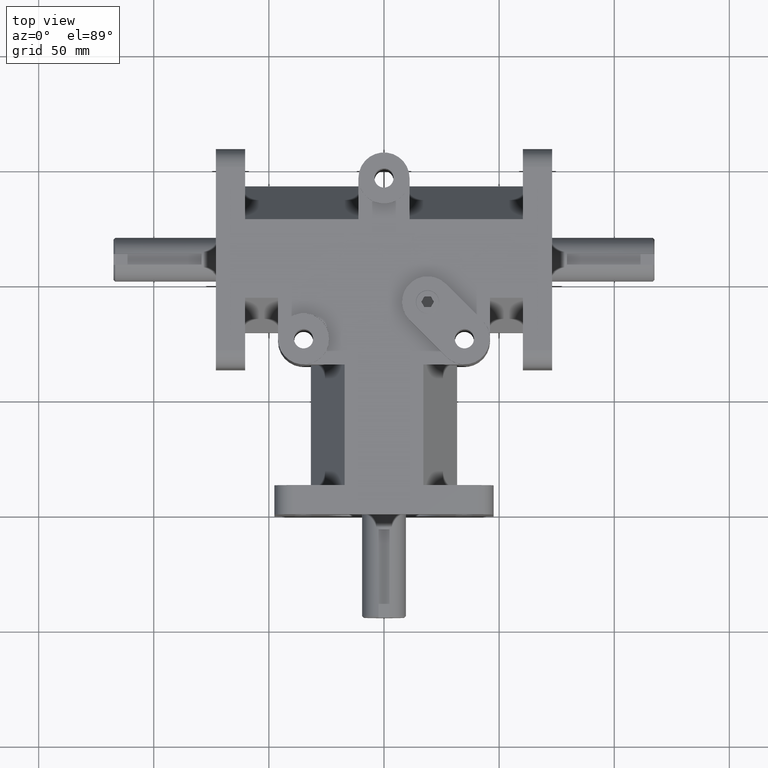
[diagram: clean part render]
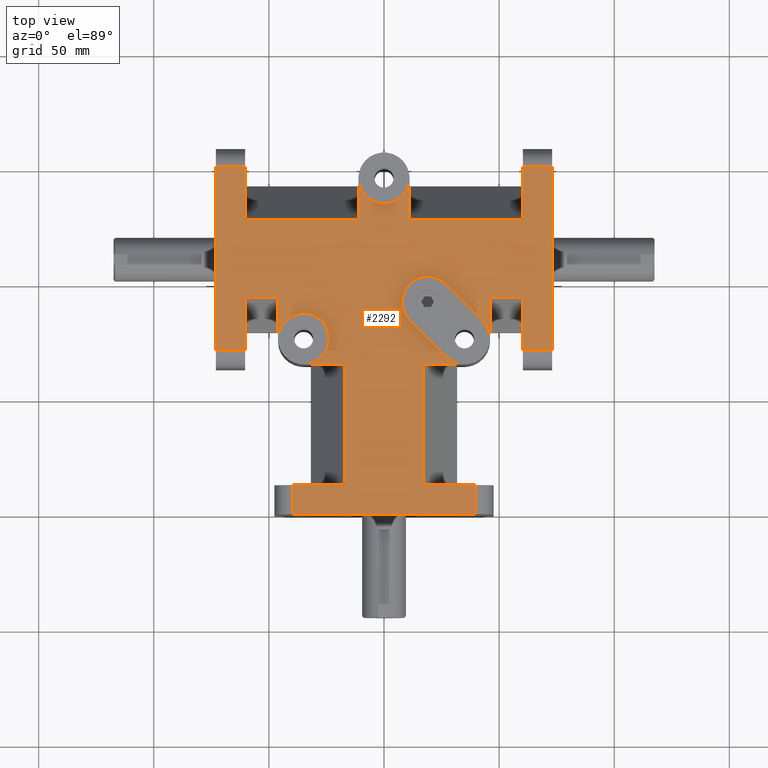
[diagram: same view with one face highlighted and labeled with its STEP entity id]
A machine part, top view. The second image highlights one B-rep face of the part: STEP entity #2292.
In plain terms, the highlighted planar face has unit normal (0, 0, 1).
Its self-contained STEP definition (entity closure, byte-faithful):
#31=LINE('',#3398,#253);
#32=LINE('',#3404,#254);
#37=LINE('',#3425,#259);
#42=LINE('',#3449,#264);
#47=LINE('',#3470,#269);
#50=LINE('',#3485,#272);
#56=LINE('',#3498,#278);
#58=LINE('',#3506,#280);
#64=LINE('',#3520,#286);
#72=LINE('',#3541,#294);
#91=LINE('',#3587,#313);
#92=LINE('',#3589,#314);
#93=LINE('',#3593,#315);
#94=LINE('',#3595,#316);
#95=LINE('',#3596,#317);
#96=LINE('',#3597,#318);
#97=LINE('',#3599,#319);
#98=LINE('',#3601,#320);
#99=LINE('',#3605,#321);
#100=LINE('',#3607,#322);
#101=LINE('',#3608,#323);
#102=LINE('',#3610,#324);
#103=LINE('',#3612,#325);
#104=LINE('',#3614,#326);
#105=LINE('',#3618,#327);
#106=LINE('',#3622,#328);
#107=LINE('',#3626,#329);
#108=LINE('',#3627,#330);
#109=LINE('',#3628,#331);
#253=VECTOR('',#2709,1.);
#254=VECTOR('',#2714,1.);
#259=VECTOR('',#2733,1.);
#264=VECTOR('',#2754,1.);
#269=VECTOR('',#2773,1.);
#272=VECTOR('',#2786,1.);
#278=VECTOR('',#2796,1.);
#280=VECTOR('',#2804,1.);
#286=VECTOR('',#2816,1.);
#294=VECTOR('',#2834,1.);
#313=VECTOR('',#2869,1.);
#314=VECTOR('',#2870,1.);
#315=VECTOR('',#2873,1.);
#316=VECTOR('',#2874,1.);
#317=VECTOR('',#2875,1.);
#318=VECTOR('',#2876,1.);
#319=VECTOR('',#2877,1.);
#320=VECTOR('',#2878,1.);
#321=VECTOR('',#2881,1.);
#322=VECTOR('',#2882,1.);
#323=VECTOR('',#2883,1.);
#324=VECTOR('',#2884,1.);
#325=VECTOR('',#2885,1.);
#326=VECTOR('',#2886,1.);
#327=VECTOR('',#2889,1.);
#328=VECTOR('',#2892,1.);
#329=VECTOR('',#2895,1.);
#330=VECTOR('',#2896,1.);
#331=VECTOR('',#2897,1.);
#580=FACE_OUTER_BOUND('',#729,.T.);
#729=EDGE_LOOP('',(#1666,#1667,#1668,#1669,#1670,#1671,#1672,#1673,#1674,
#1675,#1676,#1677,#1678,#1679,#1680,#1681,#1682,#1683,#1684,#1685,#1686,
#1687,#1688,#1689,#1690,#1691,#1692,#1693,#1694,#1695,#1696,#1697,#1698,
#1699));
#912=CIRCLE('',#2489,0.4375);
#913=CIRCLE('',#2490,0.4375);
#914=CIRCLE('',#2491,0.4375);
#915=CIRCLE('',#2492,0.4375);
#916=CIRCLE('',#2493,0.4375);
#984=VERTEX_POINT('',#3391);
#987=VERTEX_POINT('',#3396);
#989=VERTEX_POINT('',#3401);
#990=VERTEX_POINT('',#3403);
#996=VERTEX_POINT('',#3418);
#999=VERTEX_POINT('',#3423);
#1009=VERTEX_POINT('',#3446);
#1010=VERTEX_POINT('',#3448);
#1016=VERTEX_POINT('',#3463);
#1019=VERTEX_POINT('',#3468);
#1025=VERTEX_POINT('',#3482);
#1026=VERTEX_POINT('',#3484);
#1031=VERTEX_POINT('',#3496);
#1034=VERTEX_POINT('',#3505);
#1047=VERTEX_POINT('',#3539);
#1066=VERTEX_POINT('',#3586);
#1067=VERTEX_POINT('',#3588);
#1068=VERTEX_POINT('',#3590);
#1069=VERTEX_POINT('',#3592);
#1070=VERTEX_POINT('',#3594);
#1071=VERTEX_POINT('',#3598);
#1072=VERTEX_POINT('',#3600);
#1073=VERTEX_POINT('',#3602);
#1074=VERTEX_POINT('',#3604);
#1075=VERTEX_POINT('',#3606);
#1076=VERTEX_POINT('',#3609);
#1077=VERTEX_POINT('',#3611);
#1078=VERTEX_POINT('',#3613);
#1079=VERTEX_POINT('',#3615);
#1080=VERTEX_POINT('',#3617);
#1081=VERTEX_POINT('',#3619);
#1082=VERTEX_POINT('',#3621);
#1083=VERTEX_POINT('',#3623);
#1084=VERTEX_POINT('',#3625);
#1211=EDGE_CURVE('',#987,#984,#31,.T.);
#1213=EDGE_CURVE('',#989,#990,#32,.T.);
#1223=EDGE_CURVE('',#999,#996,#37,.T.);
#1233=EDGE_CURVE('',#1009,#1010,#42,.T.);
#1243=EDGE_CURVE('',#1019,#1016,#47,.T.);
#1249=EDGE_CURVE('',#1025,#1026,#50,.T.);
#1256=EDGE_CURVE('',#1031,#987,#56,.T.);
#1260=EDGE_CURVE('',#990,#1034,#58,.T.);
#1268=EDGE_CURVE('',#996,#1009,#64,.T.);
#1280=EDGE_CURVE('',#1047,#1019,#72,.T.);
#1305=EDGE_CURVE('',#1066,#1031,#91,.T.);
#1306=EDGE_CURVE('',#1067,#1066,#92,.T.);
#1307=EDGE_CURVE('',#1067,#1068,#912,.T.);
#1308=EDGE_CURVE('',#1069,#1068,#93,.T.);
#1309=EDGE_CURVE('',#1070,#1069,#94,.T.);
#1310=EDGE_CURVE('',#1026,#1070,#95,.T.);
#1311=EDGE_CURVE('',#1016,#1025,#96,.T.);
#1312=EDGE_CURVE('',#1071,#1047,#97,.T.);
#1313=EDGE_CURVE('',#1072,#1071,#98,.T.);
#1314=EDGE_CURVE('',#1072,#1073,#913,.T.);
#1315=EDGE_CURVE('',#1074,#1073,#99,.T.);
#1316=EDGE_CURVE('',#1075,#1074,#100,.T.);
#1317=EDGE_CURVE('',#1010,#1075,#101,.T.);
#1318=EDGE_CURVE('',#1076,#999,#102,.T.);
#1319=EDGE_CURVE('',#1077,#1076,#103,.T.);
#1320=EDGE_CURVE('',#1078,#1077,#104,.T.);
#1321=EDGE_CURVE('',#1078,#1079,#914,.T.);
#1322=EDGE_CURVE('',#1079,#1080,#105,.T.);
#1323=EDGE_CURVE('',#1080,#1081,#915,.T.);
#1324=EDGE_CURVE('',#1081,#1082,#106,.T.);
#1325=EDGE_CURVE('',#1082,#1083,#916,.T.);
#1326=EDGE_CURVE('',#1084,#1083,#107,.T.);
#1327=EDGE_CURVE('',#1034,#1084,#108,.T.);
#1328=EDGE_CURVE('',#984,#989,#109,.T.);
#1666=ORIENTED_EDGE('',*,*,#1211,.F.);
#1667=ORIENTED_EDGE('',*,*,#1256,.F.);
#1668=ORIENTED_EDGE('',*,*,#1305,.F.);
#1669=ORIENTED_EDGE('',*,*,#1306,.F.);
#1670=ORIENTED_EDGE('',*,*,#1307,.T.);
#1671=ORIENTED_EDGE('',*,*,#1308,.F.);
#1672=ORIENTED_EDGE('',*,*,#1309,.F.);
#1673=ORIENTED_EDGE('',*,*,#1310,.F.);
#1674=ORIENTED_EDGE('',*,*,#1249,.F.);
#1675=ORIENTED_EDGE('',*,*,#1311,.F.);
#1676=ORIENTED_EDGE('',*,*,#1243,.F.);
#1677=ORIENTED_EDGE('',*,*,#1280,.F.);
#1678=ORIENTED_EDGE('',*,*,#1312,.F.);
#1679=ORIENTED_EDGE('',*,*,#1313,.F.);
#1680=ORIENTED_EDGE('',*,*,#1314,.T.);
#1681=ORIENTED_EDGE('',*,*,#1315,.F.);
#1682=ORIENTED_EDGE('',*,*,#1316,.F.);
#1683=ORIENTED_EDGE('',*,*,#1317,.F.);
#1684=ORIENTED_EDGE('',*,*,#1233,.F.);
#1685=ORIENTED_EDGE('',*,*,#1268,.F.);
#1686=ORIENTED_EDGE('',*,*,#1223,.F.);
#1687=ORIENTED_EDGE('',*,*,#1318,.F.);
#1688=ORIENTED_EDGE('',*,*,#1319,.F.);
#1689=ORIENTED_EDGE('',*,*,#1320,.F.);
#1690=ORIENTED_EDGE('',*,*,#1321,.T.);
#1691=ORIENTED_EDGE('',*,*,#1322,.T.);
#1692=ORIENTED_EDGE('',*,*,#1323,.T.);
#1693=ORIENTED_EDGE('',*,*,#1324,.T.);
#1694=ORIENTED_EDGE('',*,*,#1325,.T.);
#1695=ORIENTED_EDGE('',*,*,#1326,.F.);
#1696=ORIENTED_EDGE('',*,*,#1327,.F.);
#1697=ORIENTED_EDGE('',*,*,#1260,.F.);
#1698=ORIENTED_EDGE('',*,*,#1213,.F.);
#1699=ORIENTED_EDGE('',*,*,#1328,.F.);
#2196=PLANE('',#2488);
#2292=ADVANCED_FACE('',(#580),#2196,.T.);
#2488=AXIS2_PLACEMENT_3D('',#3585,#2867,#2868);
#2489=AXIS2_PLACEMENT_3D('',#3591,#2871,#2872);
#2490=AXIS2_PLACEMENT_3D('',#3603,#2879,#2880);
#2491=AXIS2_PLACEMENT_3D('',#3616,#2887,#2888);
#2492=AXIS2_PLACEMENT_3D('',#3620,#2890,#2891);
#2493=AXIS2_PLACEMENT_3D('',#3624,#2893,#2894);
#2709=DIRECTION('',(1.,0.,0.));
#2714=DIRECTION('',(-1.,0.,0.));
#2733=DIRECTION('',(0.,-1.,0.));
#2754=DIRECTION('',(0.,1.,0.));
#2773=DIRECTION('',(-1.,0.,0.));
#2786=DIRECTION('',(1.,0.,0.));
#2796=DIRECTION('',(0.,1.,0.));
#2804=DIRECTION('',(0.,1.,0.));
#2816=DIRECTION('',(-1.,0.,0.));
#2834=DIRECTION('',(0.,-1.,0.));
#2867=DIRECTION('center_axis',(0.,0.,1.));
#2868=DIRECTION('ref_axis',(-1.,0.,0.));
#2869=DIRECTION('',(1.,0.,0.));
#2870=DIRECTION('',(0.,-1.,0.));
#2871=DIRECTION('center_axis',(0.,0.,-1.));
#2872=DIRECTION('ref_axis',(1.,0.,0.));
#2873=DIRECTION('',(0.,1.,0.));
#2874=DIRECTION('',(1.,0.,0.));
#2875=DIRECTION('',(0.,-1.,0.));
#2876=DIRECTION('',(0.,1.,0.));
#2877=DIRECTION('',(-1.,0.,0.));
#2878=DIRECTION('',(0.,1.,0.));
#2879=DIRECTION('center_axis',(0.,0.,-1.));
#2880=DIRECTION('ref_axis',(1.,0.,0.));
#2881=DIRECTION('',(-1.,0.,0.));
#2882=DIRECTION('',(0.,1.,0.));
#2883=DIRECTION('',(1.,0.,0.));
#2884=DIRECTION('',(1.,0.,0.));
#2885=DIRECTION('',(0.,-1.,0.));
#2886=DIRECTION('',(-1.,0.,0.));
#2887=DIRECTION('center_axis',(0.,0.,-1.));
#2888=DIRECTION('ref_axis',(1.,0.,0.));
#2889=DIRECTION('',(-0.707106781186547,0.707106781186548,0.));
#2890=DIRECTION('center_axis',(0.,0.,-1.));
#2891=DIRECTION('ref_axis',(1.,0.,0.));
#2892=DIRECTION('',(0.707106781186547,-0.707106781186548,0.));
#2893=DIRECTION('center_axis',(0.,0.,-1.));
#2894=DIRECTION('ref_axis',(1.,0.,0.));
#2895=DIRECTION('',(0.,-1.,0.));
#2896=DIRECTION('',(-1.,0.,0.));
#2897=DIRECTION('',(0.,-1.,0.));
#3391=CARTESIAN_POINT('',(2.875,5.94,1.25));
#3396=CARTESIAN_POINT('',(2.375,5.94,1.25));
#3398=CARTESIAN_POINT('',(1.4375,5.94,1.25));
#3401=CARTESIAN_POINT('',(2.875,2.81,1.25));
#3403=CARTESIAN_POINT('',(2.375,2.81,1.25));
#3404=CARTESIAN_POINT('',(1.1875,2.81,1.25));
#3418=CARTESIAN_POINT('',(1.565,0.,1.25));
#3423=CARTESIAN_POINT('',(1.565,0.5,1.25));
#3425=CARTESIAN_POINT('',(1.565,1.62991940443693,1.25));
#3446=CARTESIAN_POINT('',(-1.565,0.,1.25));
#3448=CARTESIAN_POINT('',(-1.565,0.5,1.25));
#3449=CARTESIAN_POINT('',(-1.565,1.87991940443693,1.25));
#3463=CARTESIAN_POINT('',(-2.875,2.81,1.25));
#3468=CARTESIAN_POINT('',(-2.375,2.81,1.25));
#3470=CARTESIAN_POINT('',(-1.4375,2.81,1.25));
#3482=CARTESIAN_POINT('',(-2.875,5.94,1.25));
#3484=CARTESIAN_POINT('',(-2.375,5.94,1.25));
#3485=CARTESIAN_POINT('',(-1.1875,5.94,1.25));
#3496=CARTESIAN_POINT('',(2.375,5.04765,1.25));
#3498=CARTESIAN_POINT('',(2.375,5.625,1.25));
#3505=CARTESIAN_POINT('',(2.375,3.70235,1.25));
#3506=CARTESIAN_POINT('',(2.375,3.19241940443693,1.25));
#3520=CARTESIAN_POINT('',(-1.875,0.,1.25));
#3539=CARTESIAN_POINT('',(-2.375,3.70235,1.25));
#3541=CARTESIAN_POINT('',(-2.375,2.5,1.25));
#3585=CARTESIAN_POINT('Origin',(2.34404509691366E-16,3.25983880887387,1.25));
#3586=CARTESIAN_POINT('',(0.4375,5.04765,1.25));
#3587=CARTESIAN_POINT('',(1.1875,5.04765,1.25));
#3588=CARTESIAN_POINT('',(0.4375,5.75,1.25));
#3589=CARTESIAN_POINT('',(0.4375,4.44241940443693,1.25));
#3590=CARTESIAN_POINT('',(-0.4375,5.75,1.25));
#3591=CARTESIAN_POINT('Origin',(0.,5.75,1.25));
#3592=CARTESIAN_POINT('',(-0.4375,5.04765,1.25));
#3593=CARTESIAN_POINT('',(-0.4375,5.625,1.25));
#3594=CARTESIAN_POINT('',(-2.375,5.04765,1.25));
#3595=CARTESIAN_POINT('',(-0.21875,5.04765,1.25));
#3596=CARTESIAN_POINT('',(-2.375,4.44241940443693,1.25));
#3597=CARTESIAN_POINT('',(-2.875,2.5,1.25));
#3598=CARTESIAN_POINT('',(-1.8125,3.70235,1.25));
#3599=CARTESIAN_POINT('',(-1.1875,3.70235,1.25));
#3600=CARTESIAN_POINT('',(-1.8125,3.,1.25));
#3601=CARTESIAN_POINT('',(-1.8125,3.19241940443693,1.25));
#3602=CARTESIAN_POINT('',(-1.375,2.5625,1.25));
#3603=CARTESIAN_POINT('Origin',(-1.375,3.,1.25));
#3604=CARTESIAN_POINT('',(-0.67265,2.5625,1.25));
#3605=CARTESIAN_POINT('',(-1.25,2.5625,1.25));
#3606=CARTESIAN_POINT('',(-0.67265,0.5,1.25));
#3607=CARTESIAN_POINT('',(-0.67265,2.91116940443693,1.25));
#3608=CARTESIAN_POINT('',(-0.625,0.5,1.25));
#3609=CARTESIAN_POINT('',(0.67265,0.5,1.25));
#3610=CARTESIAN_POINT('',(1.25,0.5,1.25));
#3611=CARTESIAN_POINT('',(0.67265,2.5625,1.25));
#3612=CARTESIAN_POINT('',(0.67265,1.87991940443693,1.25));
#3613=CARTESIAN_POINT('',(1.375,2.5625,1.25));
#3614=CARTESIAN_POINT('',(0.625,2.5625,1.25));
#3615=CARTESIAN_POINT('',(1.06564078323088,2.69064078323089,1.25));
#3616=CARTESIAN_POINT('Origin',(1.375,3.,1.25));
#3617=CARTESIAN_POINT('',(0.435640783230885,3.32064078323089,1.25));
#3618=CARTESIAN_POINT('',(0.656931081012418,3.09935048544935,1.25));
#3619=CARTESIAN_POINT('',(1.05435921676911,3.93935921676911,1.25));
#3620=CARTESIAN_POINT('Origin',(0.745,3.63,1.25));
#3621=CARTESIAN_POINT('',(1.68435921676911,3.30935921676911,1.25));
#3622=CARTESIAN_POINT('',(0.960649514550648,4.03306891898758,1.25));
#3623=CARTESIAN_POINT('',(1.8125,3.,1.25));
#3624=CARTESIAN_POINT('Origin',(1.375,3.,1.25));
#3625=CARTESIAN_POINT('',(1.8125,3.70235,1.25));
#3626=CARTESIAN_POINT('',(1.8125,3.,1.25));
#3627=CARTESIAN_POINT('',(0.90625,3.70235,1.25));
#3628=CARTESIAN_POINT('',(2.875,2.5,1.25));